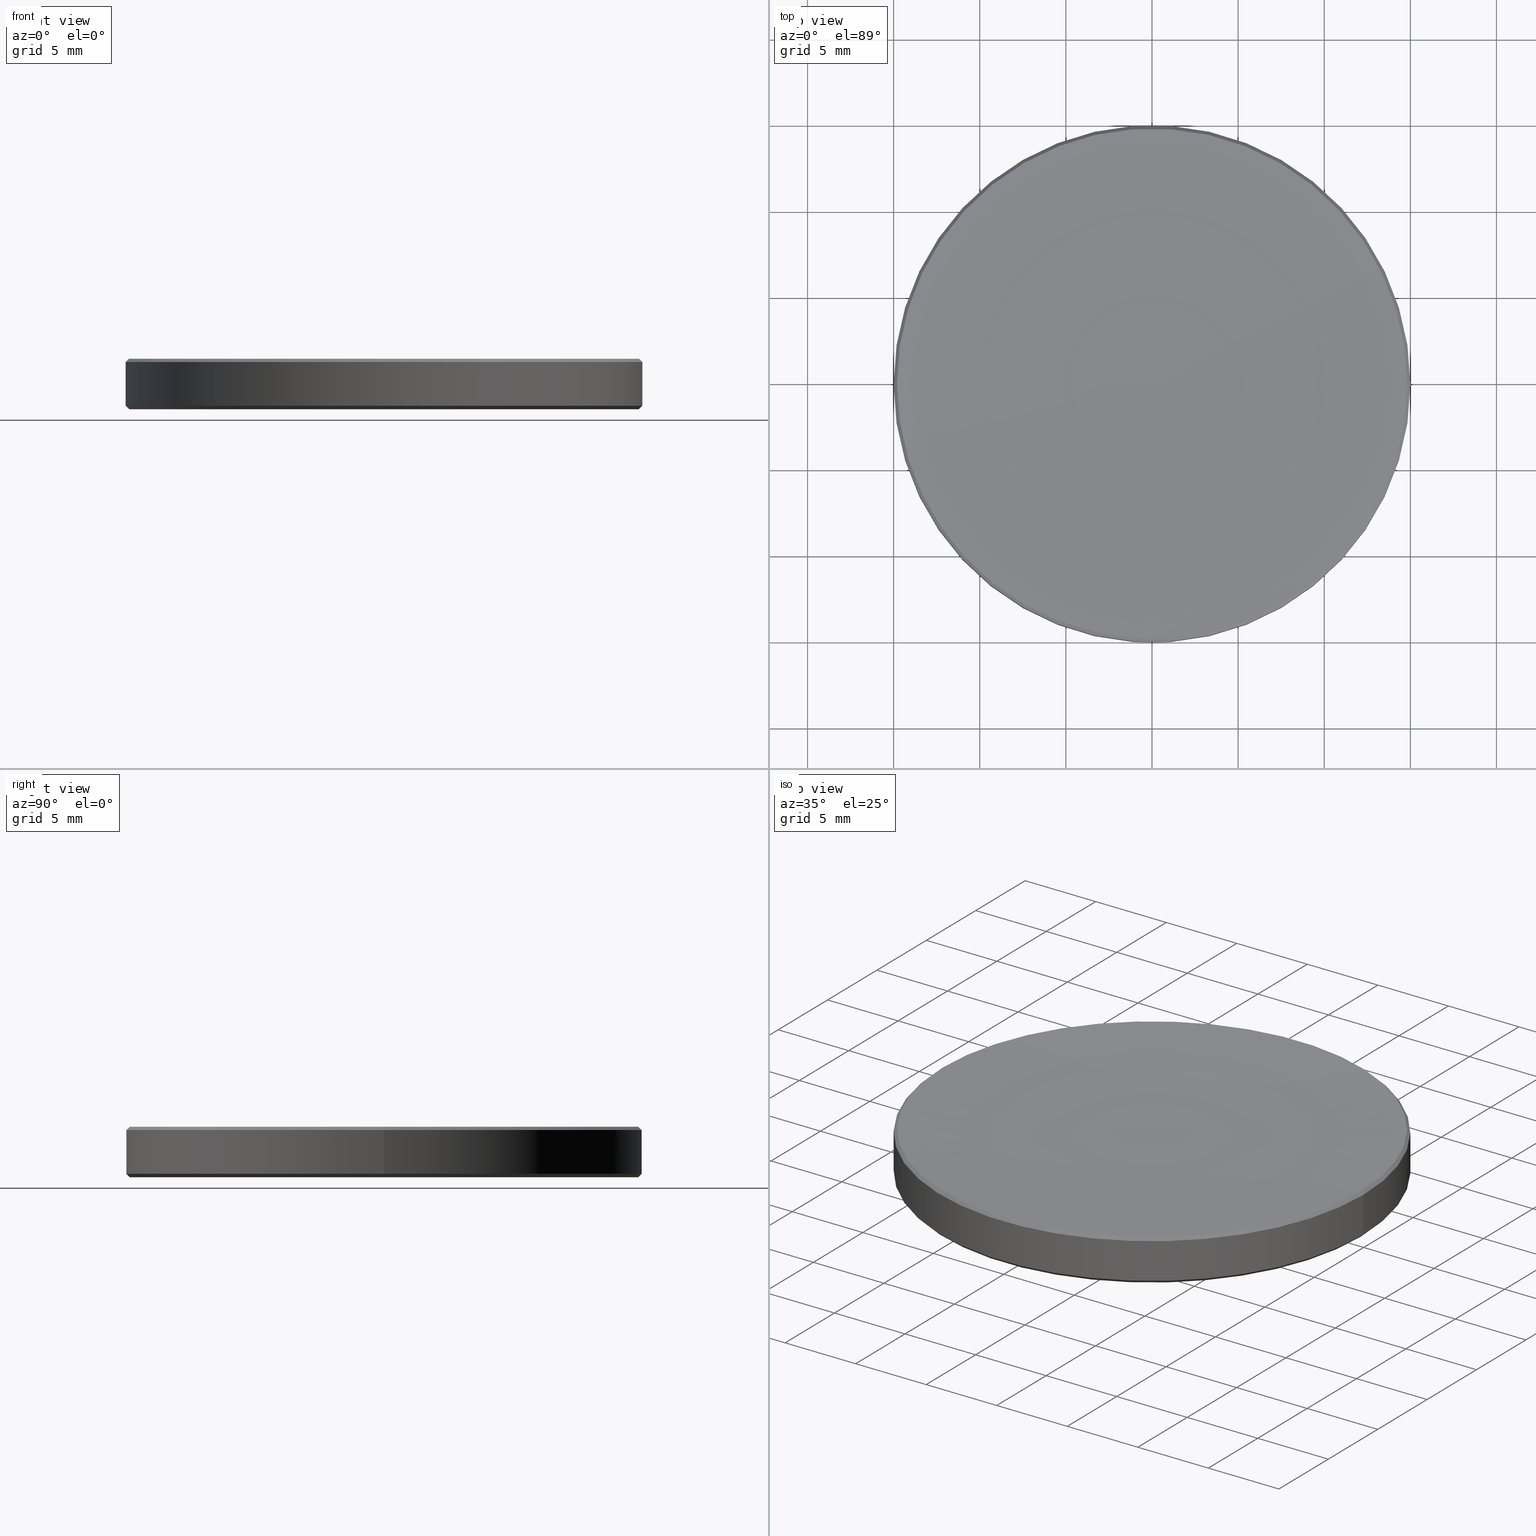
[diagram: canonical four-view strip — front | top / right | iso, engineering-drawing reading convention]
A machine part, canonical four-view strip (front | top / right | iso — engineering-drawing reading convention). The complete STEP part file that produces these views, byte-faithful:
ISO-10303-21;
HEADER;
FILE_DESCRIPTION (( 'STEP AP214' ),
    '1' );
FILE_NAME ('GL13-030-500.STEP',
    '2022-10-25T13:50:36',
    ( '' ),
    ( '' ),
    'SwSTEP 2.0',
    'SolidWorks 2022',
    '' );
FILE_SCHEMA (( 'AUTOMOTIVE_DESIGN' ));
ENDSEC;

DATA;
#1 = COLOUR_RGB ( '',1.000000000000000000, 1.000000000000000000, 1.000000000000000000 ) ;
#2 = CONICAL_SURFACE ( 'NONE', #197, 15.00000000000000000, 0.7853981633974482790 ) ;
#3 = CARTESIAN_POINT ( 'NONE',  ( -15.00000000000000000, 1.836970198721029589E-15, 0.2000000000000048683 ) ) ;
#4 = DIRECTION ( 'NONE',  ( 1.224646799147353207E-16, 1.000000000000000000, 0.000000000000000000 ) ) ;
#5 = DIRECTION ( 'NONE',  ( -0.000000000000000000, -0.000000000000000000, 1.000000000000000000 ) ) ;
#6 = EDGE_CURVE ( 'NONE', #129, #213, #61, .T. ) ;
#7 = CARTESIAN_POINT ( 'NONE',  ( 14.81098008019379542, 1.813821934744454036E-15, 2.929019919806208350 ) ) ;
#8 = TOROIDAL_SURFACE ( 'NONE', #230, -0.06682641297565440619, 258.1800000000000068 ) ;
#9 = EDGE_LOOP ( 'NONE', ( #24, #218 ) ) ;
#10 = DIRECTION ( 'NONE',  ( 1.000000000000000000, 0.000000000000000000, 0.000000000000000000 ) ) ;
#11 = DIRECTION ( 'NONE',  ( 1.000000000000000000, 0.000000000000000000, 0.000000000000000000 ) ) ;
#12 = FILL_AREA_STYLE_COLOUR ( '', #176 ) ;
#13 = DIRECTION ( 'NONE',  ( 0.000000000000000000, 0.000000000000000000, -1.000000000000000000 ) ) ;
#14 = EDGE_LOOP ( 'NONE', ( #240, #52, #252, #207 ) ) ;
#15 = PLANE ( 'NONE',  #115 ) ;
#16 = DIRECTION ( 'NONE',  ( -0.000000000000000000, -0.000000000000000000, 1.000000000000000000 ) ) ;
#17 = ORIENTED_EDGE ( 'NONE', *, *, #6, .T. ) ;
#18 = CIRCLE ( 'NONE', #89, 15.00000000000000000 ) ;
#19 = FILL_AREA_STYLE ('',( #113 ) ) ;
#20 = VERTEX_POINT ( 'NONE', #85 ) ;
#21 = CARTESIAN_POINT ( 'NONE',  ( 15.00000000000000000, 0.000000000000000000, 2.500000000000000000 ) ) ;
#22 = ORIENTED_EDGE ( 'NONE', *, *, #250, .T. ) ;
#23 = AXIS2_PLACEMENT_3D ( 'NONE', #235, #51, #11 ) ;
#24 = ORIENTED_EDGE ( 'NONE', *, *, #155, .T. ) ;
#25 = UNCERTAINTY_MEASURE_WITH_UNIT (LENGTH_MEASURE( 1.000000000000000082E-05 ), #233, 'distance_accuracy_value', 'NONE');
#26 = EDGE_CURVE ( 'NONE', #213, #216, #18, .T. ) ;
#27 = AXIS2_PLACEMENT_3D ( 'NONE', #256, #203, #10 ) ;
#28 = DIRECTION ( 'NONE',  ( 0.000000000000000000, 0.000000000000000000, -1.000000000000000000 ) ) ;
#29 = AXIS2_PLACEMENT_3D ( 'NONE', #30, #49, #92 ) ;
#30 = CARTESIAN_POINT ( 'NONE',  ( 0.000000000000000000, 0.000000000000000000, 2.740000000000020197 ) ) ;
#31 = ADVANCED_FACE ( 'NONE', ( #38 ), #253, .T. ) ;
#32 = CARTESIAN_POINT ( 'NONE',  ( -14.79999999999999538, 1.824723730729555837E-15, 9.184850993605147944E-16 ) ) ;
#33 = CARTESIAN_POINT ( 'NONE',  ( 0.000000000000000000, 0.000000000000000000, 9.184850993605147944E-16 ) ) ;
#34 = FACE_OUTER_BOUND ( 'NONE', #9, .T. ) ;
#35 = LINE ( 'NONE', #21, #124 ) ;
#36 = PRODUCT_DEFINITION ( 'δ֪', '', #130, #122 ) ;
#37 = DIRECTION ( 'NONE',  ( -0.000000000000000000, -0.000000000000000000, 1.000000000000000000 ) ) ;
#38 = FACE_OUTER_BOUND ( 'NONE', #140, .T. ) ;
#39 = AXIS2_PLACEMENT_3D ( 'NONE', #66, #229, #137 ) ;
#40 = EDGE_LOOP ( 'NONE', ( #71, #87, #244 ) ) ;
#41 = AXIS2_PLACEMENT_3D ( 'NONE', #161, #13, #184 ) ;
#42 = DIRECTION ( 'NONE',  ( 0.000000000000000000, 0.000000000000000000, -1.000000000000000000 ) ) ;
#43 = EDGE_CURVE ( 'NONE', #20, #99, #54, .T. ) ;
#44 = CARTESIAN_POINT ( 'NONE',  ( -14.81098008019379542, 0.000000000000000000, 2.929019919806208350 ) ) ;
#45 = PRODUCT_RELATED_PRODUCT_CATEGORY ( 'part', '', ( #104 ) ) ;
#46 = STYLED_ITEM ( 'NONE', ( #110 ), #65 ) ;
#47 = CIRCLE ( 'NONE', #234, 14.81098008019381673 ) ;
#48 = EDGE_CURVE ( 'NONE', #173, #121, #160, .T. ) ;
#49 = DIRECTION ( 'NONE',  ( 0.000000000000000000, 0.000000000000000000, -1.000000000000000000 ) ) ;
#50 = CARTESIAN_POINT ( 'NONE',  ( 0.000000000000000000, 0.000000000000000000, 2.500000000000000000 ) ) ;
#51 = DIRECTION ( 'NONE',  ( 0.000000000000000000, 0.000000000000000000, 1.000000000000000000 ) ) ;
#52 = ORIENTED_EDGE ( 'NONE', *, *, #181, .T. ) ;
#53 = CARTESIAN_POINT ( 'NONE',  ( 0.000000000000000000, 0.000000000000000000, 2.500000000000000000 ) ) ;
#54 = LINE ( 'NONE', #44, #136 ) ;
#55 = PRODUCT_DEFINITION_SHAPE ( 'NONE', 'NONE',  #36 ) ;
#56 = FILL_AREA_STYLE ('',( #12 ) ) ;
#57 = DIRECTION ( 'NONE',  ( 1.000000000000000000, 0.000000000000000000, 0.000000000000000000 ) ) ;
#58 = ORIENTED_EDGE ( 'NONE', *, *, #69, .T. ) ;
#59 = VECTOR ( 'NONE', #210, 1000.000000000000114 ) ;
#60 =( GEOMETRIC_REPRESENTATION_CONTEXT ( 3 ) GLOBAL_UNCERTAINTY_ASSIGNED_CONTEXT ( ( #25 ) ) GLOBAL_UNIT_ASSIGNED_CONTEXT ( ( #233, #78, #132 ) ) REPRESENTATION_CONTEXT ( 'NONE', 'WORKASPACE' ) );
#61 = LINE ( 'NONE', #135, #59 ) ;
#62 = APPLICATION_PROTOCOL_DEFINITION ( 'draft international standard', 'automotive_design', 1998, #68 ) ;
#63 = ORIENTED_EDGE ( 'NONE', *, *, #6, .F. ) ;
#64 = ORIENTED_EDGE ( 'NONE', *, *, #26, .T. ) ;
#65 = MANIFOLD_SOLID_BREP ( '����2', #202 ) ;
#66 = CARTESIAN_POINT ( 'NONE',  ( 0.000000000000000000, 0.000000000000000000, 2.929019919806263861 ) ) ;
#67 = TOROIDAL_SURFACE ( 'NONE', #70, -0.06682641297565440619, 258.1800000000000068 ) ;
#68 = APPLICATION_CONTEXT ( 'automotive_design' ) ;
#69 = EDGE_CURVE ( 'NONE', #216, #170, #35, .T. ) ;
#70 = AXIS2_PLACEMENT_3D ( 'NONE', #241, #164, #57 ) ;
#71 = ORIENTED_EDGE ( 'NONE', *, *, #231, .F. ) ;
#72 = DIRECTION ( 'NONE',  ( -0.000000000000000000, -0.000000000000000000, 1.000000000000000000 ) ) ;
#73 = SURFACE_SIDE_STYLE ('',( #83 ) ) ;
#74 = CARTESIAN_POINT ( 'NONE',  ( 15.00000000000000000, 0.000000000000000000, 0.2000000000000048683 ) ) ;
#75 = LINE ( 'NONE', #74, #215 ) ;
#76 = DIRECTION ( 'NONE',  ( 1.000000000000000000, 0.000000000000000000, 0.000000000000000000 ) ) ;
#77 = VERTEX_POINT ( 'NONE', #192 ) ;
#78 =( NAMED_UNIT ( * ) PLANE_ANGLE_UNIT ( ) SI_UNIT ( $, .RADIAN. ) );
#79 = CARTESIAN_POINT ( 'NONE',  ( 0.000000000000000000, 0.000000000000000000, 2.929019919806208350 ) ) ;
#80 = SURFACE_STYLE_USAGE ( .BOTH. , #206 ) ;
#81 = DIRECTION ( 'NONE',  ( 1.000000000000000000, 0.000000000000000000, 0.000000000000000000 ) ) ;
#82 = EDGE_CURVE ( 'NONE', #20, #121, #47, .T. ) ;
#83 = SURFACE_STYLE_FILL_AREA ( #56 ) ;
#84 = CIRCLE ( 'NONE', #149, 15.00000000000000000 ) ;
#85 = CARTESIAN_POINT ( 'NONE',  ( -14.81098008019427681, 1.813821934744513201E-15, 2.929019919806235883 ) ) ;
#86 = UNCERTAINTY_MEASURE_WITH_UNIT (LENGTH_MEASURE( 1.000000000000000082E-05 ), #219, 'distance_accuracy_value', 'NONE');
#87 = ORIENTED_EDGE ( 'NONE', *, *, #48, .T. ) ;
#88 = ORIENTED_EDGE ( 'NONE', *, *, #82, .F. ) ;
#89 = AXIS2_PLACEMENT_3D ( 'NONE', #266, #221, #76 ) ;
#90 = VECTOR ( 'NONE', #96, 1000.000000000000114 ) ;
#91 = DIRECTION ( 'NONE',  ( -1.000000000000000000, 1.224646799147353207E-16, 0.000000000000000000 ) ) ;
#92 = DIRECTION ( 'NONE',  ( -1.000000000000000000, 0.000000000000000000, 0.000000000000000000 ) ) ;
#93 = PRESENTATION_LAYER_ASSIGNMENT (  '', '', ( #209 ) ) ;
#94 = CARTESIAN_POINT ( 'NONE',  ( 0.000000000000000000, 0.000000000000000000, 2.929019919806208350 ) ) ;
#95 = EDGE_CURVE ( 'NONE', #99, #170, #84, .T. ) ;
#96 = DIRECTION ( 'NONE',  ( 0.7071067811865766606, 8.659560562355291543E-17, -0.7071067811865182628 ) ) ;
#97 = CIRCLE ( 'NONE', #185, 258.1800000000000068 ) ;
#98 = AXIS2_PLACEMENT_3D ( 'NONE', #50, #37, #103 ) ;
#99 = VERTEX_POINT ( 'NONE', #232 ) ;
#100 = CARTESIAN_POINT ( 'NONE',  ( -15.00000000000000000, 1.836970198721029589E-15, 2.500000000000000000 ) ) ;
#101 = PRODUCT_CONTEXT ( 'NONE', #68, 'mechanical' ) ;
#102 =( NAMED_UNIT ( * ) SI_UNIT ( $, .STERADIAN. ) SOLID_ANGLE_UNIT ( ) );
#103 = DIRECTION ( 'NONE',  ( 1.000000000000000000, 0.000000000000000000, 0.000000000000000000 ) ) ;
#104 = PRODUCT ( 'GL13-030-500', 'GL13-030-500', '', ( #101 ) ) ;
#105 = CARTESIAN_POINT ( 'NONE',  ( 0.000000000000000000, 0.000000000000000000, 9.184850993605147944E-16 ) ) ;
#106 = SURFACE_STYLE_FILL_AREA ( #19 ) ;
#107 = ORIENTED_EDGE ( 'NONE', *, *, #82, .T. ) ;
#108 = CONICAL_SURFACE ( 'NONE', #116, 14.81098008019379542, 0.7853981633974895793 ) ;
#109 = CARTESIAN_POINT ( 'NONE',  ( 0.000000000000000000, 0.000000000000000000, 260.6799913514417426 ) ) ;
#110 = PRESENTATION_STYLE_ASSIGNMENT (( #80 ) ) ;
#111 = ADVANCED_FACE ( 'NONE', ( #157 ), #186, .T. ) ;
#112 = EDGE_LOOP ( 'NONE', ( #146, #88, #193, #114 ) ) ;
#113 = FILL_AREA_STYLE_COLOUR ( '', #1 ) ;
#114 = ORIENTED_EDGE ( 'NONE', *, *, #250, .F. ) ;
#115 = AXIS2_PLACEMENT_3D ( 'NONE', #105, #188, #165 ) ;
#116 = AXIS2_PLACEMENT_3D ( 'NONE', #79, #169, #258 ) ;
#117 = CARTESIAN_POINT ( 'NONE',  ( 0.06682641297565440619, -8.183875274913430883E-18, 260.6799913514417426 ) ) ;
#118 = ADVANCED_FACE ( 'NONE', ( #217 ), #8, .F. ) ;
#119 = DIRECTION ( 'NONE',  ( -1.000000000000000000, 0.000000000000000000, 0.000000000000000000 ) ) ;
#120 = ADVANCED_BREP_SHAPE_REPRESENTATION ( 'GL13-030-500', ( #65, #23 ), #60 ) ;
#121 = VERTEX_POINT ( 'NONE', #141 ) ;
#122 = PRODUCT_DEFINITION_CONTEXT ( 'detailed design', #191, 'design' ) ;
#123 = CARTESIAN_POINT ( 'NONE',  ( 15.00000000000000000, 0.000000000000000000, 2.740000000000020197 ) ) ;
#124 = VECTOR ( 'NONE', #16, 1000.000000000000000 ) ;
#125 =( NAMED_UNIT ( * ) PLANE_ANGLE_UNIT ( ) SI_UNIT ( $, .RADIAN. ) );
#126 = SURFACE_STYLE_USAGE ( .BOTH. , #73 ) ;
#127 = CARTESIAN_POINT ( 'NONE',  ( 0.000000000000000000, 0.000000000000000000, 2.500000000000000000 ) ) ;
#128 = ORIENTED_EDGE ( 'NONE', *, *, #138, .F. ) ;
#129 = VERTEX_POINT ( 'NONE', #32 ) ;
#130 = PRODUCT_DEFINITION_FORMATION_WITH_SPECIFIED_SOURCE ( '�κ�', '', #104, .NOT_KNOWN. ) ;
#131 = AXIS2_PLACEMENT_3D ( 'NONE', #53, #204, #163 ) ;
#132 =( NAMED_UNIT ( * ) SI_UNIT ( $, .STERADIAN. ) SOLID_ANGLE_UNIT ( ) );
#133 = CARTESIAN_POINT ( 'NONE',  ( 0.000000000000000000, 0.000000000000000000, 2.740000000000020197 ) ) ;
#134 = ADVANCED_FACE ( 'NONE', ( #187 ), #108, .T. ) ;
#135 = CARTESIAN_POINT ( 'NONE',  ( -15.00000000000000000, 1.836970198721029589E-15, 0.2000000000000048683 ) ) ;
#136 = VECTOR ( 'NONE', #174, 1000.000000000000114 ) ;
#137 = DIRECTION ( 'NONE',  ( 1.000000000000000000, 0.000000000000000000, 0.000000000000000000 ) ) ;
#138 = EDGE_CURVE ( 'NONE', #129, #77, #259, .T. ) ;
#139 = CIRCLE ( 'NONE', #27, 15.00000000000000000 ) ;
#140 = EDGE_LOOP ( 'NONE', ( #63, #248, #168, #171 ) ) ;
#141 = CARTESIAN_POINT ( 'NONE',  ( 14.81098008019427681, 0.000000000000000000, 2.929019919806235883 ) ) ;
#142 = ADVANCED_FACE ( 'NONE', ( #238 ), #143, .T. ) ;
#143 = CYLINDRICAL_SURFACE ( 'NONE', #131, 15.00000000000000000 ) ;
#144 = APPLICATION_PROTOCOL_DEFINITION ( 'draft international standard', 'automotive_design', 1998, #191 ) ;
#145 = FACE_OUTER_BOUND ( 'NONE', #195, .T. ) ;
#146 = ORIENTED_EDGE ( 'NONE', *, *, #153, .F. ) ;
#147 =( NAMED_UNIT ( * ) SI_UNIT ( $, .STERADIAN. ) SOLID_ANGLE_UNIT ( ) );
#148 = ADVANCED_FACE ( 'NONE', ( #145 ), #67, .F. ) ;
#149 = AXIS2_PLACEMENT_3D ( 'NONE', #133, #28, #119 ) ;
#150 = EDGE_LOOP ( 'NONE', ( #190, #64, #58, #22 ) ) ;
#151 = CARTESIAN_POINT ( 'NONE',  ( -0.06682641297565440619, 0.000000000000000000, 260.6799913514417426 ) ) ;
#152 = AXIS2_PLACEMENT_3D ( 'NONE', #33, #201, #205 ) ;
#153 = EDGE_CURVE ( 'NONE', #121, #170, #257, .T. ) ;
#154 = CARTESIAN_POINT ( 'NONE',  ( 15.00000000000000000, 0.000000000000000000, 0.2000000000000048683 ) ) ;
#155 = EDGE_CURVE ( 'NONE', #77, #129, #223, .T. ) ;
#156 = CARTESIAN_POINT ( 'NONE',  ( 0.000000000000000000, 0.000000000000000000, 0.2000000000000048683 ) ) ;
#157 = FACE_OUTER_BOUND ( 'NONE', #150, .T. ) ;
#158 = VECTOR ( 'NONE', #72, 1000.000000000000000 ) ;
#159 = ORIENTED_EDGE ( 'NONE', *, *, #95, .F. ) ;
#160 = CIRCLE ( 'NONE', #211, 258.1800000000000068 ) ;
#161 = CARTESIAN_POINT ( 'NONE',  ( 0.000000000000000000, 0.000000000000000000, 9.184850993605147944E-16 ) ) ;
#162 = ORIENTED_EDGE ( 'NONE', *, *, #43, .F. ) ;
#163 = DIRECTION ( 'NONE',  ( 1.000000000000000000, 0.000000000000000000, 0.000000000000000000 ) ) ;
#164 = DIRECTION ( 'NONE',  ( -0.000000000000000000, -0.000000000000000000, 1.000000000000000000 ) ) ;
#165 = DIRECTION ( 'NONE',  ( 1.000000000000000000, 0.000000000000000000, 0.000000000000000000 ) ) ;
#166 = DIRECTION ( 'NONE',  ( -0.000000000000000000, -0.000000000000000000, 1.000000000000000000 ) ) ;
#167 = SHAPE_DEFINITION_REPRESENTATION ( #55, #120 ) ;
#168 = ORIENTED_EDGE ( 'NONE', *, *, #194, .T. ) ;
#169 = DIRECTION ( 'NONE',  ( 0.000000000000000000, 0.000000000000000000, -1.000000000000000000 ) ) ;
#170 = VERTEX_POINT ( 'NONE', #123 ) ;
#171 = ORIENTED_EDGE ( 'NONE', *, *, #26, .F. ) ;
#172 = MECHANICAL_DESIGN_GEOMETRIC_PRESENTATION_REPRESENTATION (  '', ( #209 ), #225 ) ;
#173 = VERTEX_POINT ( 'NONE', #127 ) ;
#174 = DIRECTION ( 'NONE',  ( -0.7071067811865766606, 0.000000000000000000, -0.7071067811865182628 ) ) ;
#175 =( LENGTH_UNIT ( ) NAMED_UNIT ( * ) SI_UNIT ( .MILLI., .METRE. ) );
#176 = COLOUR_RGB ( '',1.000000000000000000, 1.000000000000000000, 1.000000000000000000 ) ;
#177 =( GEOMETRIC_REPRESENTATION_CONTEXT ( 3 ) GLOBAL_UNCERTAINTY_ASSIGNED_CONTEXT ( ( #199 ) ) GLOBAL_UNIT_ASSIGNED_CONTEXT ( ( #175, #262, #147 ) ) REPRESENTATION_CONTEXT ( 'NONE', 'WORKASPACE' ) );
#178 = EDGE_CURVE ( 'NONE', #216, #213, #139, .T. ) ;
#179 = FACE_OUTER_BOUND ( 'NONE', #237, .T. ) ;
#180 = FACE_OUTER_BOUND ( 'NONE', #112, .T. ) ;
#181 = EDGE_CURVE ( 'NONE', #213, #99, #220, .T. ) ;
#182 = DIRECTION ( 'NONE',  ( 1.000000000000000000, 0.000000000000000000, 0.000000000000000000 ) ) ;
#183 = PRESENTATION_LAYER_ASSIGNMENT (  '', '', ( #46 ) ) ;
#184 = DIRECTION ( 'NONE',  ( 1.000000000000000000, 0.000000000000000000, 0.000000000000000000 ) ) ;
#185 = AXIS2_PLACEMENT_3D ( 'NONE', #117, #4, #91 ) ;
#186 = CYLINDRICAL_SURFACE ( 'NONE', #98, 15.00000000000000000 ) ;
#187 = FACE_OUTER_BOUND ( 'NONE', #265, .T. ) ;
#188 = DIRECTION ( 'NONE',  ( 0.000000000000000000, -0.000000000000000000, 1.000000000000000000 ) ) ;
#189 = CARTESIAN_POINT ( 'NONE',  ( 0.000000000000000000, 0.000000000000000000, 2.929019919806263861 ) ) ;
#190 = ORIENTED_EDGE ( 'NONE', *, *, #181, .F. ) ;
#191 = APPLICATION_CONTEXT ( 'automotive_design' ) ;
#192 = CARTESIAN_POINT ( 'NONE',  ( 14.79999999999999538, 0.000000000000000000, 9.184850993605147944E-16 ) ) ;
#193 = ORIENTED_EDGE ( 'NONE', *, *, #43, .T. ) ;
#194 = EDGE_CURVE ( 'NONE', #77, #216, #75, .T. ) ;
#195 = EDGE_LOOP ( 'NONE', ( #263, #260, #107 ) ) ;
#196 = DIRECTION ( 'NONE',  ( 0.000000000000000000, -1.000000000000000000, 0.000000000000000000 ) ) ;
#197 = AXIS2_PLACEMENT_3D ( 'NONE', #156, #5, #182 ) ;
#198 = CIRCLE ( 'NONE', #39, 14.81098008019381673 ) ;
#199 = UNCERTAINTY_MEASURE_WITH_UNIT (LENGTH_MEASURE( 1.000000000000000082E-05 ), #175, 'distance_accuracy_value', 'NONE');
#200 = ADVANCED_FACE ( 'NONE', ( #34 ), #15, .F. ) ;
#201 = DIRECTION ( 'NONE',  ( 0.000000000000000000, 0.000000000000000000, -1.000000000000000000 ) ) ;
#202 = CLOSED_SHELL ( 'NONE', ( #134, #243, #142, #148, #118, #111, #200, #31, #261 ) ) ;
#203 = DIRECTION ( 'NONE',  ( -0.000000000000000000, -0.000000000000000000, 1.000000000000000000 ) ) ;
#204 = DIRECTION ( 'NONE',  ( -0.000000000000000000, -0.000000000000000000, 1.000000000000000000 ) ) ;
#205 = DIRECTION ( 'NONE',  ( 1.000000000000000000, 0.000000000000000000, 0.000000000000000000 ) ) ;
#206 = SURFACE_SIDE_STYLE ('',( #106 ) ) ;
#207 = ORIENTED_EDGE ( 'NONE', *, *, #69, .F. ) ;
#208 = DIRECTION ( 'NONE',  ( -0.000000000000000000, -0.000000000000000000, 1.000000000000000000 ) ) ;
#209 = STYLED_ITEM ( 'NONE', ( #247 ), #120 ) ;
#210 = DIRECTION ( 'NONE',  ( -0.7071067811865474617, 8.659560562354932858E-17, 0.7071067811865474617 ) ) ;
#211 = AXIS2_PLACEMENT_3D ( 'NONE', #151, #196, #42 ) ;
#212 = CARTESIAN_POINT ( 'NONE',  ( 0.000000000000000000, 0.000000000000000000, 0.2000000000000048683 ) ) ;
#213 = VERTEX_POINT ( 'NONE', #3 ) ;
#214 = ORIENTED_EDGE ( 'NONE', *, *, #194, .F. ) ;
#215 = VECTOR ( 'NONE', #236, 1000.000000000000114 ) ;
#216 = VERTEX_POINT ( 'NONE', #154 ) ;
#217 = FACE_OUTER_BOUND ( 'NONE', #40, .T. ) ;
#218 = ORIENTED_EDGE ( 'NONE', *, *, #138, .T. ) ;
#219 =( LENGTH_UNIT ( ) NAMED_UNIT ( * ) SI_UNIT ( .MILLI., .METRE. ) );
#220 = LINE ( 'NONE', #100, #158 ) ;
#221 = DIRECTION ( 'NONE',  ( -0.000000000000000000, -0.000000000000000000, 1.000000000000000000 ) ) ;
#222 = DIRECTION ( 'NONE',  ( 1.000000000000000000, 0.000000000000000000, 0.000000000000000000 ) ) ;
#223 = CIRCLE ( 'NONE', #41, 14.79999999999999538 ) ;
#224 = ORIENTED_EDGE ( 'NONE', *, *, #227, .F. ) ;
#225 =( GEOMETRIC_REPRESENTATION_CONTEXT ( 3 ) GLOBAL_UNCERTAINTY_ASSIGNED_CONTEXT ( ( #86 ) ) GLOBAL_UNIT_ASSIGNED_CONTEXT ( ( #219, #125, #102 ) ) REPRESENTATION_CONTEXT ( 'NONE', 'WORKASPACE' ) );
#226 = CONICAL_SURFACE ( 'NONE', #255, 14.81098008019379542, 0.7853981633974895793 ) ;
#227 = EDGE_CURVE ( 'NONE', #121, #20, #198, .T. ) ;
#228 = DIRECTION ( 'NONE',  ( 1.000000000000000000, 0.000000000000000000, 0.000000000000000000 ) ) ;
#229 = DIRECTION ( 'NONE',  ( -0.000000000000000000, -0.000000000000000000, 1.000000000000000000 ) ) ;
#230 = AXIS2_PLACEMENT_3D ( 'NONE', #109, #208, #222 ) ;
#231 = EDGE_CURVE ( 'NONE', #173, #20, #97, .T. ) ;
#232 = CARTESIAN_POINT ( 'NONE',  ( -15.00000000000000000, 1.836970198721029589E-15, 2.740000000000020197 ) ) ;
#233 =( LENGTH_UNIT ( ) NAMED_UNIT ( * ) SI_UNIT ( .MILLI., .METRE. ) );
#234 = AXIS2_PLACEMENT_3D ( 'NONE', #189, #246, #228 ) ;
#235 = CARTESIAN_POINT ( 'NONE',  ( 0.000000000000000000, 0.000000000000000000, 0.000000000000000000 ) ) ;
#236 = DIRECTION ( 'NONE',  ( 0.7071067811865474617, 0.000000000000000000, 0.7071067811865474617 ) ) ;
#237 = EDGE_LOOP ( 'NONE', ( #128, #17, #239, #214 ) ) ;
#238 = FACE_OUTER_BOUND ( 'NONE', #14, .T. ) ;
#239 = ORIENTED_EDGE ( 'NONE', *, *, #178, .F. ) ;
#240 = ORIENTED_EDGE ( 'NONE', *, *, #178, .T. ) ;
#241 = CARTESIAN_POINT ( 'NONE',  ( 0.000000000000000000, 0.000000000000000000, 260.6799913514417426 ) ) ;
#242 = ORIENTED_EDGE ( 'NONE', *, *, #153, .T. ) ;
#243 = ADVANCED_FACE ( 'NONE', ( #179 ), #2, .T. ) ;
#244 = ORIENTED_EDGE ( 'NONE', *, *, #227, .T. ) ;
#245 = CIRCLE ( 'NONE', #29, 15.00000000000000000 ) ;
#246 = DIRECTION ( 'NONE',  ( -0.000000000000000000, -0.000000000000000000, 1.000000000000000000 ) ) ;
#247 = PRESENTATION_STYLE_ASSIGNMENT (( #126 ) ) ;
#248 = ORIENTED_EDGE ( 'NONE', *, *, #155, .F. ) ;
#249 = MECHANICAL_DESIGN_GEOMETRIC_PRESENTATION_REPRESENTATION (  '', ( #46 ), #177 ) ;
#250 = EDGE_CURVE ( 'NONE', #170, #99, #245, .T. ) ;
#251 = DIRECTION ( 'NONE',  ( -1.000000000000000000, 0.000000000000000000, 0.000000000000000000 ) ) ;
#252 = ORIENTED_EDGE ( 'NONE', *, *, #95, .T. ) ;
#253 = CONICAL_SURFACE ( 'NONE', #264, 15.00000000000000000, 0.7853981633974482790 ) ;
#254 = DIRECTION ( 'NONE',  ( 0.000000000000000000, 0.000000000000000000, -1.000000000000000000 ) ) ;
#255 = AXIS2_PLACEMENT_3D ( 'NONE', #94, #254, #251 ) ;
#256 = CARTESIAN_POINT ( 'NONE',  ( 0.000000000000000000, 0.000000000000000000, 0.2000000000000048683 ) ) ;
#257 = LINE ( 'NONE', #7, #90 ) ;
#258 = DIRECTION ( 'NONE',  ( -1.000000000000000000, 0.000000000000000000, 0.000000000000000000 ) ) ;
#259 = CIRCLE ( 'NONE', #152, 14.79999999999999538 ) ;
#260 = ORIENTED_EDGE ( 'NONE', *, *, #231, .T. ) ;
#261 = ADVANCED_FACE ( 'NONE', ( #180 ), #226, .T. ) ;
#262 =( NAMED_UNIT ( * ) PLANE_ANGLE_UNIT ( ) SI_UNIT ( $, .RADIAN. ) );
#263 = ORIENTED_EDGE ( 'NONE', *, *, #48, .F. ) ;
#264 = AXIS2_PLACEMENT_3D ( 'NONE', #212, #166, #81 ) ;
#265 = EDGE_LOOP ( 'NONE', ( #224, #242, #159, #162 ) ) ;
#266 = CARTESIAN_POINT ( 'NONE',  ( 0.000000000000000000, 0.000000000000000000, 0.2000000000000048683 ) ) ;
ENDSEC;
END-ISO-10303-21;
